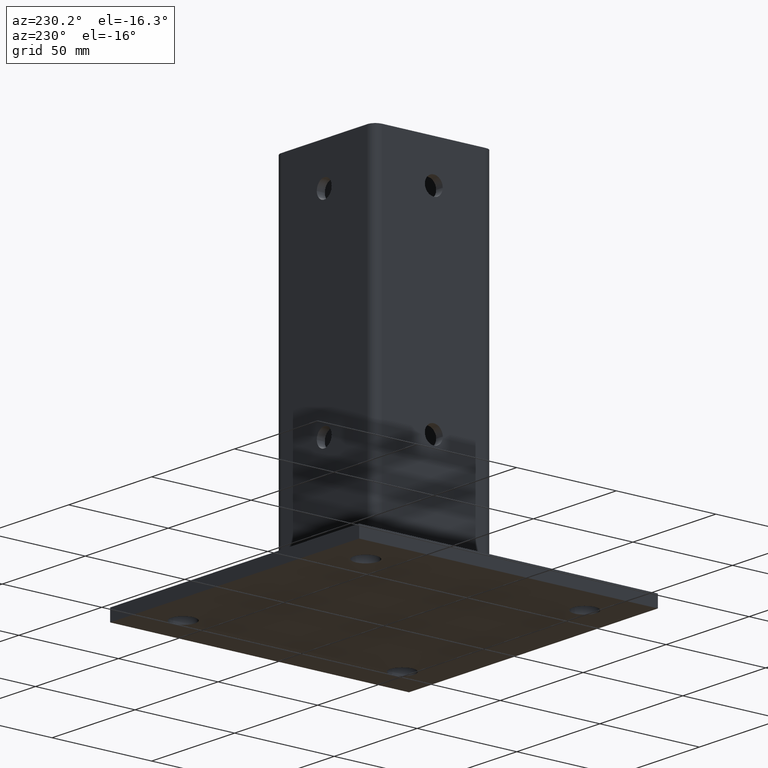
[diagram: clean part render]
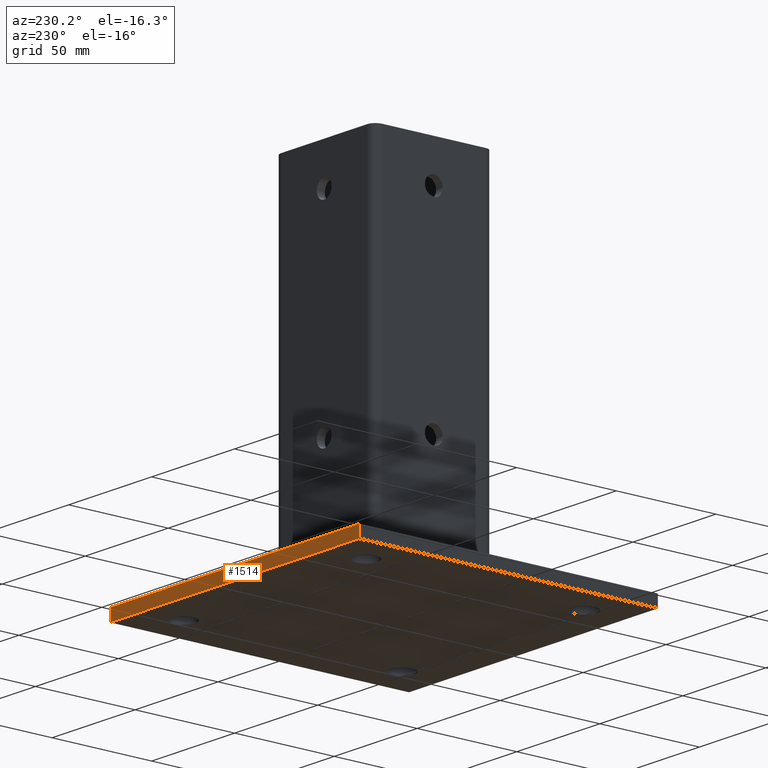
[diagram: same view with one face highlighted and labeled with its STEP entity id]
A machine part, auxiliary view. The second image highlights one B-rep face of the part: STEP entity #1514.
In plain terms, the highlighted planar face has unit normal (0, 1, 0).
Its self-contained STEP definition (entity closure, byte-faithful):
#24 = VERTEX_POINT ( 'NONE', #36 ) ;
#36 = CARTESIAN_POINT ( 'NONE',  ( -75.00000000000000000, 75.00000000000000000, 0.0000000000000000000 ) ) ;
#90 = CARTESIAN_POINT ( 'NONE',  ( -75.00000000000000000, 75.00000000000000000, -6.000000000000000000 ) ) ;
#96 = CARTESIAN_POINT ( 'NONE',  ( 75.00000000000000000, 75.00000000000000000, 0.0000000000000000000 ) ) ;
#97 = CARTESIAN_POINT ( 'NONE',  ( 75.00000000000000000, 75.00000000000000000, -6.000000000000000000 ) ) ;
#135 = CARTESIAN_POINT ( 'NONE',  ( -75.00000000000000000, 75.00000000000000000, -3.000000000000000000 ) ) ;
#136 = DIRECTION ( 'NONE',  ( -0.0000000000000000000, -0.0000000000000000000, -1.000000000000000000 ) ) ;
#186 = CARTESIAN_POINT ( 'NONE',  ( 0.0000000000000000000, 75.00000000000000000, 0.0000000000000000000 ) ) ;
#187 = DIRECTION ( 'NONE',  ( -1.000000000000000000, -0.0000000000000000000, -0.0000000000000000000 ) ) ;
#258 = CARTESIAN_POINT ( 'NONE',  ( 75.00000000000000000, 75.00000000000000000, -3.000000000000000000 ) ) ;
#259 = DIRECTION ( 'NONE',  ( -0.0000000000000000000, -0.0000000000000000000, 1.000000000000000000 ) ) ;
#333 = EDGE_CURVE ( 'NONE', #506, #505, #1107, .T. ) ;
#336 = EDGE_CURVE ( 'NONE', #24, #425, #1111, .T. ) ;
#356 = EDGE_CURVE ( 'NONE', #505, #24, #833, .T. ) ;
#384 = EDGE_CURVE ( 'NONE', #506, #425, #975, .T. ) ;
#425 = VERTEX_POINT ( 'NONE', #90 ) ;
#505 = VERTEX_POINT ( 'NONE', #96 ) ;
#506 = VERTEX_POINT ( 'NONE', #97 ) ;
#626 = PLANE ( 'NONE',  #1125 ) ;
#627 = CARTESIAN_POINT ( 'NONE',  ( -75.00000000000000000, 75.00000000000000000, -6.000000000000000000 ) ) ;
#628 = DIRECTION ( 'NONE',  ( 0.0000000000000000000, 1.000000000000000000, 0.0000000000000000000 ) ) ;
#629 = DIRECTION ( 'NONE',  ( 0.0000000000000000000, 0.0000000000000000000, 1.000000000000000000 ) ) ;
#832 = VECTOR ( 'NONE', #187, 1000.000000000000000 ) ;
#833 = LINE ( 'NONE', #186, #832 ) ;
#975 = LINE ( 'NONE', #1313, #978 ) ;
#978 = VECTOR ( 'NONE', #1314, 1000.000000000000000 ) ;
#1107 = LINE ( 'NONE', #258, #1109 ) ;
#1109 = VECTOR ( 'NONE', #259, 1000.000000000000000 ) ;
#1111 = LINE ( 'NONE', #135, #1113 ) ;
#1113 = VECTOR ( 'NONE', #136, 1000.000000000000000 ) ;
#1125 = AXIS2_PLACEMENT_3D ( 'NONE', #627, #628, #629 ) ;
#1259 = FACE_OUTER_BOUND ( 'NONE', #1392, .T. ) ;
#1313 = CARTESIAN_POINT ( 'NONE',  ( 0.0000000000000000000, 75.00000000000000000, -6.000000000000000000 ) ) ;
#1314 = DIRECTION ( 'NONE',  ( -1.000000000000000000, -0.0000000000000000000, -0.0000000000000000000 ) ) ;
#1376 = ORIENTED_EDGE ( 'NONE', *, *, #384, .T. ) ;
#1378 = ORIENTED_EDGE ( 'NONE', *, *, #356, .F. ) ;
#1379 = ORIENTED_EDGE ( 'NONE', *, *, #333, .F. ) ;
#1380 = ORIENTED_EDGE ( 'NONE', *, *, #336, .F. ) ;
#1392 = EDGE_LOOP ( 'NONE', ( #1379, #1376, #1380, #1378 ) ) ;
#1514 = ADVANCED_FACE ( 'NONE', ( #1259 ), #626, .T. ) ;